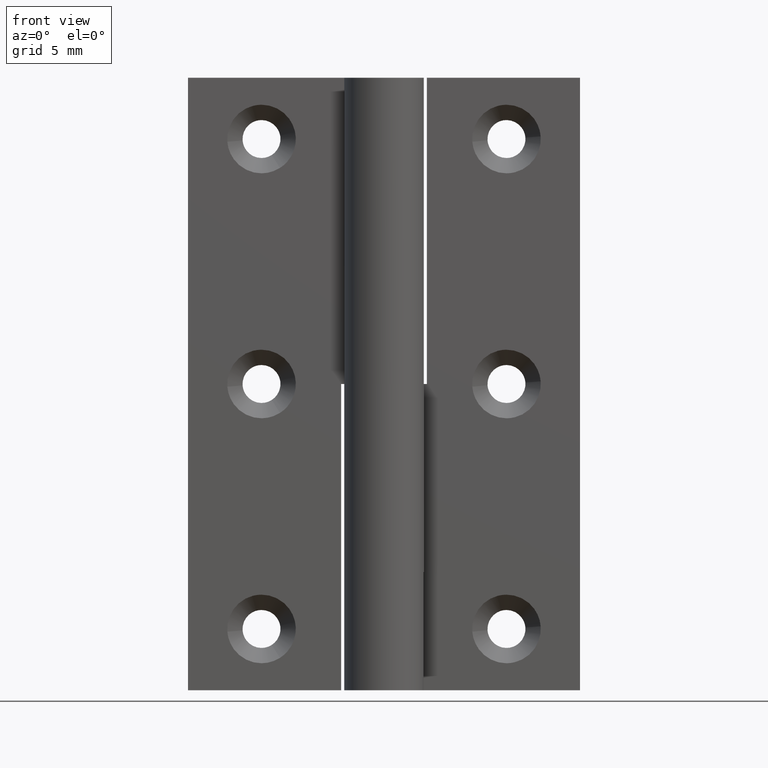
[diagram: clean part render]
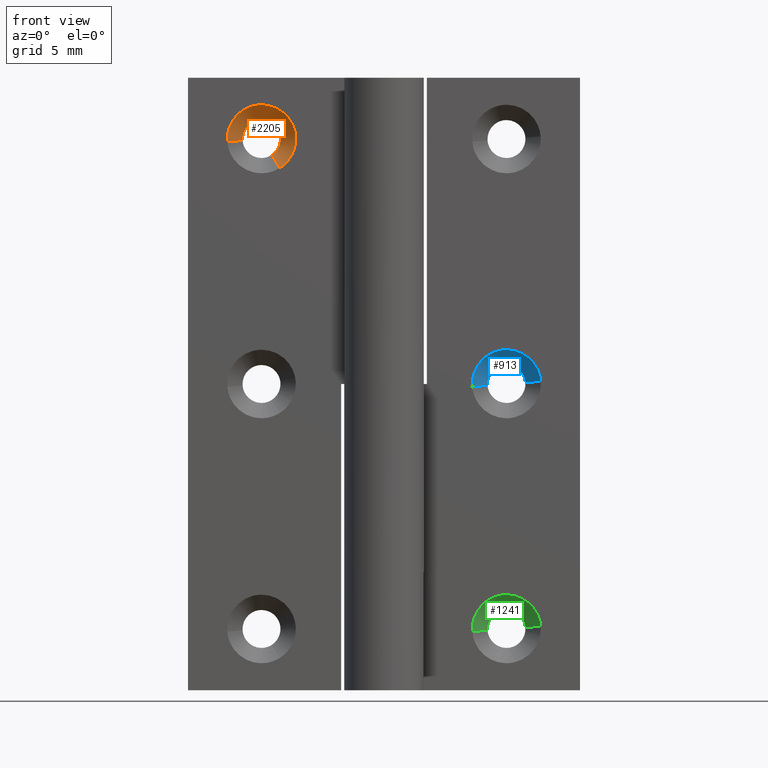
[diagram: same view with three faces highlighted in distinct colors, each labeled with its STEP entity id]
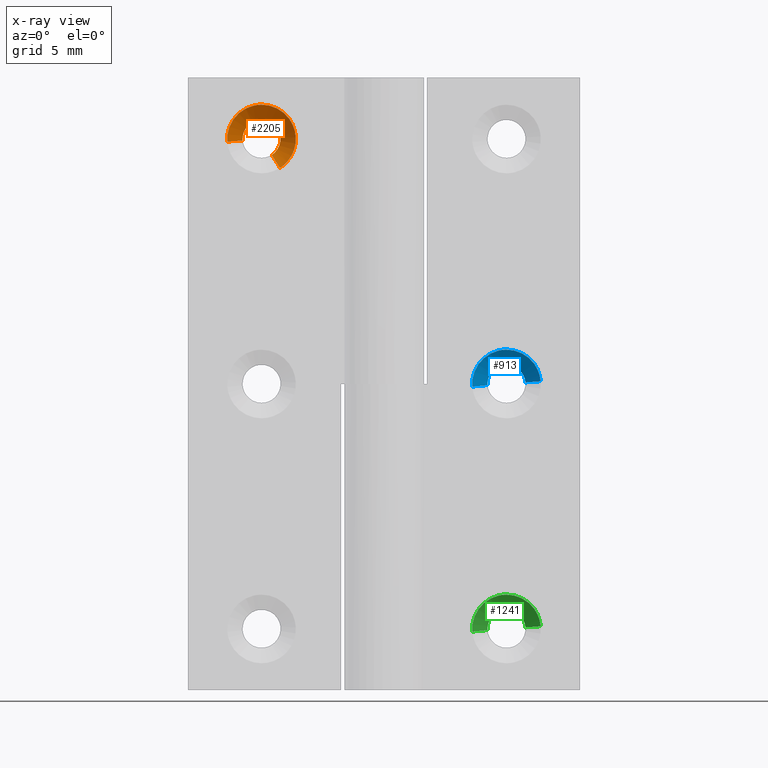
[diagram: x-ray of the same camera — body ghosted, the three highlighted faces saturated]
A machine part, front view with three faces highlighted in distinct colors.
The next image is the same camera in x-ray (body ghosted, the three faces saturated) — at least one of them is partly hidden behind the body in this view.
Their STEP definitions:

[orange] entity #2205 — the highlighted face is a freeform B-spline surface patch.
#2069=CARTESIAN_POINT('',(-9.183139107453576,3.031250000000000,43.719632925787188));
#2070=CARTESIAN_POINT('',(-8.414386393113874,3.031250000000001,44.210089171523684));
#2071=CARTESIAN_POINT('',(-8.485931799392812,3.031250000000000,45.119159751636673));
#2072=CARTESIAN_POINT('',(-8.605091551029480,3.031250000000001,46.633227952243836));
#2073=CARTESIAN_POINT('',(-10.119159751636669,3.031250000000000,46.514068200607177));
#2074=CARTESIAN_POINT('',(-11.633227952243853,3.031250000000001,46.394908448970519));
#2075=CARTESIAN_POINT('',(-11.514068200607189,3.031250000000000,44.880840248363327));
#2076=CARTESIAN_POINT('',(-8.476789745123053,1.717968750000000,42.612484236614485));
#2077=CARTESIAN_POINT('',(-7.043287384278698,1.717968750000000,43.527043851220839));
#2078=CARTESIAN_POINT('',(-7.176698957201103,1.717968750000000,45.222198610947999));
#2079=CARTESIAN_POINT('',(-7.398897568149104,1.717968750000001,48.045499653746894));
#2080=CARTESIAN_POINT('',(-10.222198610948000,1.717968750000000,47.823301042798903));
#2081=CARTESIAN_POINT('',(-13.045499653746896,1.717968750000001,47.601102431850904));
#2082=CARTESIAN_POINT('',(-12.823301042798899,1.717968750000000,44.777801389052001));
#2090=(BOUNDED_SURFACE()B_SPLINE_SURFACE(2,1,((#2069,#2076),(#2070,#2077),(#2071,#2078),(#2072,#2079),(#2073,#2080),(#2074,#2081),(#2075,#2082)),.UNSPECIFIED.,.F.,.F.,.U.)B_SPLINE_SURFACE_WITH_KNOTS((3,2,2,3),(2,2),(0.0,3.190738847655251,7.883001858912975,12.575264870170701),(0.0,1.0),.UNSPECIFIED.)GEOMETRIC_REPRESENTATION_ITEM()RATIONAL_B_SPLINE_SURFACE(((0.872532871172386,0.872532871172386),(0.800832611206852,0.800832611206852),(1.0,1.0),(0.707106781186548,0.707106781186548),(1.0,1.0),(0.707106781186548,0.707106781186548),(1.0,1.0)))REPRESENTATION_ITEM('')SURFACE());
#2091=CARTESIAN_POINT('',(-8.460835234154368,3.0,45.182953063869839));
#2092=VERTEX_POINT('',#2091);
#2093=CARTESIAN_POINT('',(-9.166331270153037,2.999999999999658,43.693287924263188));
#2094=VERTEX_POINT('',#2093);
#2095=CARTESIAN_POINT('',(-8.460835234154368,3.000000000000000,45.182953063869839));
#2096=CARTESIAN_POINT('',(-8.450000000000001,3.0,45.091797385613930));
#2097=CARTESIAN_POINT('',(-8.450000000000001,3.0,45.0));
#2098=CARTESIAN_POINT('',(-8.450000000000001,2.999999999999999,44.150299833185173));
#2099=CARTESIAN_POINT('',(-9.166331270153039,2.999999999999658,43.693287924263188));
#2107=(BOUNDED_CURVE()B_SPLINE_CURVE(2,(#2095,#2096,#2097,#2098,#2099),.UNSPECIFIED.,.F.,.U.)B_SPLINE_CURVE_WITH_KNOTS((3,2,3),(0.229562473482295,0.250000000000000,0.407950112626363),.UNSPECIFIED.)CURVE()GEOMETRIC_REPRESENTATION_ITEM()RATIONAL_B_SPLINE_CURVE((0.956026754122519,0.976055948294576,1.0,0.814949932403669,0.863729296954191))REPRESENTATION_ITEM(''));
#2108=EDGE_CURVE('',#2092,#2094,#2107,.T.);
#2109=ORIENTED_EDGE('',*,*,#2108,.T.);
#2110=CARTESIAN_POINT('',(-8.494017778289670,1.749999999996397,42.639487863214299));
#2111=VERTEX_POINT('',#2110);
#2112=CARTESIAN_POINT('',(-9.166331270153037,2.999999999999658,43.693287924263188));
#2113=CARTESIAN_POINT('',(-8.494017778289670,1.749999999996397,42.639487863214299));
#2114=QUASI_UNIFORM_CURVE('',1,(#2112,#2113),.UNSPECIFIED.,.F.,.U.);
#2115=EDGE_CURVE('',#2094,#2111,#2114,.T.);
#2116=ORIENTED_EDGE('',*,*,#2115,.T.);
#2117=CARTESIAN_POINT('',(-10.0,1.750000000000000,47.799999999999997));
#2118=VERTEX_POINT('',#2117);
#2119=CARTESIAN_POINT('',(-10.0,1.750000000000000,47.799999999999997));
#2120=CARTESIAN_POINT('',(-7.200000000000000,1.750000000000000,47.799999999999997));
#2121=CARTESIAN_POINT('',(-7.200000000000000,1.750000000000000,45.0));
#2122=CARTESIAN_POINT('',(-7.200000000000000,1.750000000000000,43.465057763249852));
#2123=CARTESIAN_POINT('',(-8.494017778289670,1.749999999996397,42.639487863214299));
#2131=(BOUNDED_CURVE()B_SPLINE_CURVE(2,(#2119,#2120,#2121,#2122,#2123),.UNSPECIFIED.,.F.,.U.)B_SPLINE_CURVE_WITH_KNOTS((3,2,3),(0.0,0.250000000000000,0.407950112619935),.UNSPECIFIED.)CURVE()GEOMETRIC_REPRESENTATION_ITEM()RATIONAL_B_SPLINE_CURVE((1.0,0.707106781186547,1.0,0.814949932411200,0.863729296950220))REPRESENTATION_ITEM(''));
#2132=EDGE_CURVE('',#2118,#2111,#2131,.T.);
#2133=ORIENTED_EDGE('',*,*,#2132,.F.);
#2134=CARTESIAN_POINT('',(-12.791368534462871,1.749999999974803,44.780314531769420));
#2135=VERTEX_POINT('',#2134);
#2136=CARTESIAN_POINT('',(-12.791368534462872,1.749999999974804,44.780314531769420));
#2137=CARTESIAN_POINT('',(-12.800000000000004,1.750000000000000,44.889987700187007));
#2138=CARTESIAN_POINT('',(-12.800000000000001,1.750000000000000,45.0));
#2139=CARTESIAN_POINT('',(-12.800000000000001,1.750000000000000,47.799999999999997));
#2140=CARTESIAN_POINT('',(-10.0,1.750000000000000,47.799999999999997));
#2148=(BOUNDED_CURVE()B_SPLINE_CURVE(2,(#2136,#2137,#2138,#2139,#2140),.UNSPECIFIED.,.F.,.U.)B_SPLINE_CURVE_WITH_KNOTS((3,2,3),(0.736331300609352,0.750000000000000,1.0),.UNSPECIFIED.)CURVE()GEOMETRIC_REPRESENTATION_ITEM()RATIONAL_B_SPLINE_CURVE((0.969723356122950,0.983986122553918,1.0,0.707106781186547,1.0))REPRESENTATION_ITEM(''));
#2149=EDGE_CURVE('',#2135,#2118,#2148,.T.);
#2150=ORIENTED_EDGE('',*,*,#2149,.F.);
#2151=CARTESIAN_POINT('',(-11.545221867302221,2.999999999960590,44.878388401321189));
#2152=VERTEX_POINT('',#2151);
#2153=CARTESIAN_POINT('',(-11.545221867302221,2.999999999960590,44.878388401321189));
#2154=CARTESIAN_POINT('',(-12.791368534462871,1.749999999974803,44.780314531769420));
#2155=QUASI_UNIFORM_CURVE('',1,(#2153,#2154),.UNSPECIFIED.,.F.,.U.);
#2156=EDGE_CURVE('',#2152,#2135,#2155,.T.);
#2157=ORIENTED_EDGE('',*,*,#2156,.F.);
#2158=CARTESIAN_POINT('',(-11.547108937546771,3.0,44.905374763604478));
#2159=VERTEX_POINT('',#2158);
#2160=CARTESIAN_POINT('',(-11.545221867302217,2.999999999960591,44.878388401321182));
#2161=CARTESIAN_POINT('',(-11.546283155599843,3.000000000000001,44.891873348150732));
#2162=CARTESIAN_POINT('',(-11.547108937546767,3.0,44.905374763604478));
#2170=(BOUNDED_CURVE()B_SPLINE_CURVE(2,(#2160,#2161,#2162),.UNSPECIFIED.,.F.,.U.)B_SPLINE_CURVE_WITH_KNOTS((3,3),(0.736331300566745,0.739332962215983),.UNSPECIFIED.)CURVE()GEOMETRIC_REPRESENTATION_ITEM()RATIONAL_B_SPLINE_CURVE((0.969723356034032,0.972855475467486,0.976072041617509))REPRESENTATION_ITEM(''));
#2171=EDGE_CURVE('',#2152,#2159,#2170,.T.);
#2172=ORIENTED_EDGE('',*,*,#2171,.T.);
#2173=CARTESIAN_POINT('',(-10.0,3.0,46.549999999999997));
#2174=VERTEX_POINT('',#2173);
#2175=CARTESIAN_POINT('',(-11.547108937546774,3.000000000000000,44.905374763604478));
#2176=CARTESIAN_POINT('',(-11.550000000000004,2.999999999999999,44.952643216770369));
#2177=CARTESIAN_POINT('',(-11.550000000000001,3.0,45.0));
#2178=CARTESIAN_POINT('',(-11.549999999999999,3.000000000000000,46.549999999999990));
#2179=CARTESIAN_POINT('',(-10.0,3.0,46.549999999999997));
#2187=(BOUNDED_CURVE()B_SPLINE_CURVE(2,(#2175,#2176,#2177,#2178,#2179),.UNSPECIFIED.,.F.,.U.)B_SPLINE_CURVE_WITH_KNOTS((3,2,3),(0.739332962215983,0.750000000000000,1.0),.UNSPECIFIED.)CURVE()GEOMETRIC_REPRESENTATION_ITEM()RATIONAL_B_SPLINE_CURVE((0.976072041617510,0.987502787872938,1.0,0.707106781186547,1.0))REPRESENTATION_ITEM(''));
#2188=EDGE_CURVE('',#2159,#2174,#2187,.T.);
#2189=ORIENTED_EDGE('',*,*,#2188,.T.);
#2190=CARTESIAN_POINT('',(-10.0,3.0,46.549999999999997));
#2191=CARTESIAN_POINT('',(-8.623329485048952,2.999999999999999,46.549999999999997));
#2192=CARTESIAN_POINT('',(-8.460835234154368,3.000000000000000,45.182953063869832));
#2200=(BOUNDED_CURVE()B_SPLINE_CURVE(2,(#2190,#2191,#2192),.UNSPECIFIED.,.F.,.U.)B_SPLINE_CURVE_WITH_KNOTS((3,3),(0.0,0.229562473482295),.UNSPECIFIED.)CURVE()GEOMETRIC_REPRESENTATION_ITEM()RATIONAL_B_SPLINE_CURVE((1.0,0.731050832891971,0.956026754122519))REPRESENTATION_ITEM(''));
#2201=EDGE_CURVE('',#2174,#2092,#2200,.T.);
#2202=ORIENTED_EDGE('',*,*,#2201,.T.);
#2203=EDGE_LOOP('',(#2109,#2116,#2133,#2150,#2157,#2172,#2189,#2202));
#2204=FACE_OUTER_BOUND('',#2203,.T.);
#2205=ADVANCED_FACE('',(#2204),#2090,.F.);

[blue] entity #913 — the highlighted face is a freeform B-spline surface patch.
#718=CARTESIAN_POINT('',(8.452891050591822,2.999999999989410,24.905374957537241));
#719=VERTEX_POINT('',#718);
#763=CARTESIAN_POINT('',(11.545221867326820,2.999999999898537,25.121611599157131));
#764=VERTEX_POINT('',#763);
#780=CARTESIAN_POINT('',(10.0,3.0,26.550000000000001));
#781=VERTEX_POINT('',#780);
#782=CARTESIAN_POINT('',(10.0,3.0,26.550000000000001));
#783=CARTESIAN_POINT('',(11.432805260635956,3.000000000000001,26.550000000000001));
#784=CARTESIAN_POINT('',(11.545221867326823,2.999999999898537,25.121611599157131));
#792=(BOUNDED_CURVE()B_SPLINE_CURVE(2,(#782,#783,#784),.UNSPECIFIED.,.F.,.U.)B_SPLINE_CURVE_WITH_KNOTS((3,3),(0.0,0.236331300461697),.UNSPECIFIED.)CURVE()GEOMETRIC_REPRESENTATION_ITEM()RATIONAL_B_SPLINE_CURVE((1.0,0.723120658805618,0.969723355814805))REPRESENTATION_ITEM(''));
#793=EDGE_CURVE('',#781,#764,#792,.T.);
#795=CARTESIAN_POINT('',(8.452891050591822,2.999999999989410,24.905374957537237));
#796=CARTESIAN_POINT('',(8.450000000000001,3.0,24.952643314067043));
#797=CARTESIAN_POINT('',(8.450000000000001,3.0,25.0));
#798=CARTESIAN_POINT('',(8.450000000000001,3.000000000000000,26.550000000000008));
#799=CARTESIAN_POINT('',(10.0,3.0,26.550000000000001));
#807=(BOUNDED_CURVE()B_SPLINE_CURVE(2,(#795,#796,#797,#798,#799),.UNSPECIFIED.,.F.,.U.)B_SPLINE_CURVE_WITH_KNOTS((3,2,3),(0.739332983858013,0.750000000000000,1.0),.UNSPECIFIED.)CURVE()GEOMETRIC_REPRESENTATION_ITEM()RATIONAL_B_SPLINE_CURVE((0.976072088000504,0.987502813228153,1.0,0.707106781186547,1.0))REPRESENTATION_ITEM(''));
#808=EDGE_CURVE('',#719,#781,#807,.T.);
#847=CARTESIAN_POINT('',(11.514068200607189,3.031250000000000,25.119159751636669));
#848=CARTESIAN_POINT('',(11.394908448970520,3.031250000000001,26.633227952243857));
#849=CARTESIAN_POINT('',(9.880840248363334,3.031250000000000,26.514068200607191));
#850=CARTESIAN_POINT('',(8.366772047756149,3.031250000000001,26.394908448970515));
#851=CARTESIAN_POINT('',(8.485931799392812,3.031250000000000,24.880840248363331));
#852=CARTESIAN_POINT('',(12.823301042798899,1.717968750000000,25.222198610947999));
#853=CARTESIAN_POINT('',(12.601102431850896,1.717968750000001,28.045499653746891));
#854=CARTESIAN_POINT('',(9.777801389052000,1.717968750000000,27.823301042798899));
#855=CARTESIAN_POINT('',(6.954500346253103,1.717968750000001,27.601102431850897));
#856=CARTESIAN_POINT('',(7.176698957201103,1.717968750000000,24.777801389052001));
#864=(BOUNDED_SURFACE()B_SPLINE_SURFACE(2,1,((#847,#852),(#848,#853),(#849,#854),(#850,#855),(#851,#856)),.UNSPECIFIED.,.F.,.F.,.U.)B_SPLINE_SURFACE_WITH_KNOTS((3,2,3),(2,2),(0.0,4.692263011257722,9.384526022515443),(0.0,1.0),.UNSPECIFIED.)GEOMETRIC_REPRESENTATION_ITEM()RATIONAL_B_SPLINE_SURFACE(((1.0,1.0),(0.707106781186548,0.707106781186548),(1.0,1.0),(0.707106781186548,0.707106781186548),(1.0,1.0)))REPRESENTATION_ITEM('')SURFACE());
#865=ORIENTED_EDGE('',*,*,#793,.T.);
#866=CARTESIAN_POINT('',(12.791368534462871,1.749999999974803,25.219685468230580));
#867=VERTEX_POINT('',#866);
#868=CARTESIAN_POINT('',(11.545221867326820,2.999999999898537,25.121611599157131));
#869=CARTESIAN_POINT('',(12.791368534462871,1.749999999974803,25.219685468230580));
#870=QUASI_UNIFORM_CURVE('',1,(#868,#869),.UNSPECIFIED.,.F.,.U.);
#871=EDGE_CURVE('',#764,#867,#870,.T.);
#872=ORIENTED_EDGE('',*,*,#871,.T.);
#873=CARTESIAN_POINT('',(10.0,1.750000000000000,27.800000000000001));
#874=VERTEX_POINT('',#873);
#875=CARTESIAN_POINT('',(10.0,1.750000000000000,27.800000000000001));
#876=CARTESIAN_POINT('',(12.588293376288350,1.750000000000000,27.800000000000004));
#877=CARTESIAN_POINT('',(12.791368534462872,1.749999999974804,25.219685468230576));
#885=(BOUNDED_CURVE()B_SPLINE_CURVE(2,(#875,#876,#877),.UNSPECIFIED.,.F.,.U.)B_SPLINE_CURVE_WITH_KNOTS((3,3),(0.0,0.236331300609352),.UNSPECIFIED.)CURVE()GEOMETRIC_REPRESENTATION_ITEM()RATIONAL_B_SPLINE_CURVE((1.0,0.723120658632629,0.969723356122950))REPRESENTATION_ITEM(''));
#886=EDGE_CURVE('',#874,#867,#885,.T.);
#887=ORIENTED_EDGE('',*,*,#886,.F.);
#888=CARTESIAN_POINT('',(7.208631465537128,1.749999999974804,24.780314531769420));
#889=VERTEX_POINT('',#888);
#890=CARTESIAN_POINT('',(7.208631465537128,1.749999999974804,24.780314531769417));
#891=CARTESIAN_POINT('',(7.200000000000000,1.750000000000000,24.889987700186996));
#892=CARTESIAN_POINT('',(7.200000000000000,1.750000000000000,25.0));
#893=CARTESIAN_POINT('',(7.200000000000000,1.750000000000000,27.800000000000004));
#894=CARTESIAN_POINT('',(10.0,1.750000000000000,27.800000000000001));
#902=(BOUNDED_CURVE()B_SPLINE_CURVE(2,(#890,#891,#892,#893,#894),.UNSPECIFIED.,.F.,.U.)B_SPLINE_CURVE_WITH_KNOTS((3,2,3),(0.736331300609351,0.750000000000000,1.0),.UNSPECIFIED.)CURVE()GEOMETRIC_REPRESENTATION_ITEM()RATIONAL_B_SPLINE_CURVE((0.969723356122949,0.983986122553918,1.0,0.707106781186547,1.0))REPRESENTATION_ITEM(''));
#903=EDGE_CURVE('',#889,#874,#902,.T.);
#904=ORIENTED_EDGE('',*,*,#903,.F.);
#905=CARTESIAN_POINT('',(8.452891050591822,2.999999999989410,24.905374957537241));
#906=CARTESIAN_POINT('',(7.208631465537128,1.749999999974804,24.780314531769420));
#907=QUASI_UNIFORM_CURVE('',1,(#905,#906),.UNSPECIFIED.,.F.,.U.);
#908=EDGE_CURVE('',#719,#889,#907,.T.);
#909=ORIENTED_EDGE('',*,*,#908,.F.);
#910=ORIENTED_EDGE('',*,*,#808,.T.);
#911=EDGE_LOOP('',(#865,#872,#887,#904,#909,#910));
#912=FACE_OUTER_BOUND('',#911,.T.);
#913=ADVANCED_FACE('',(#912),#864,.F.);

[green] entity #1241 — the highlighted face is a freeform B-spline surface patch.
#1046=CARTESIAN_POINT('',(8.452891050591820,2.999999999989410,4.905374957537241));
#1047=VERTEX_POINT('',#1046);
#1091=CARTESIAN_POINT('',(11.545221867326820,2.999999999898537,5.121611599157134));
#1092=VERTEX_POINT('',#1091);
#1108=CARTESIAN_POINT('',(10.0,3.0,6.550000000000001));
#1109=VERTEX_POINT('',#1108);
#1110=CARTESIAN_POINT('',(10.0,3.0,6.550000000000001));
#1111=CARTESIAN_POINT('',(11.432805260635956,3.0,6.550000000000001));
#1112=CARTESIAN_POINT('',(11.545221867326823,2.999999999898537,5.121611599157134));
#1120=(BOUNDED_CURVE()B_SPLINE_CURVE(2,(#1110,#1111,#1112),.UNSPECIFIED.,.F.,.U.)B_SPLINE_CURVE_WITH_KNOTS((3,3),(0.0,0.236331300461697),.UNSPECIFIED.)CURVE()GEOMETRIC_REPRESENTATION_ITEM()RATIONAL_B_SPLINE_CURVE((1.0,0.723120658805618,0.969723355814805))REPRESENTATION_ITEM(''));
#1121=EDGE_CURVE('',#1109,#1092,#1120,.T.);
#1123=CARTESIAN_POINT('',(8.452891050591820,2.999999999989410,4.905374957537241));
#1124=CARTESIAN_POINT('',(8.450000000000001,3.000000000000001,4.952643314067042));
#1125=CARTESIAN_POINT('',(8.450000000000001,3.0,5.0));
#1126=CARTESIAN_POINT('',(8.450000000000001,3.000000000000000,6.550000000000000));
#1127=CARTESIAN_POINT('',(10.0,3.0,6.550000000000001));
#1135=(BOUNDED_CURVE()B_SPLINE_CURVE(2,(#1123,#1124,#1125,#1126,#1127),.UNSPECIFIED.,.F.,.U.)B_SPLINE_CURVE_WITH_KNOTS((3,2,3),(0.739332983858013,0.750000000000000,1.0),.UNSPECIFIED.)CURVE()GEOMETRIC_REPRESENTATION_ITEM()RATIONAL_B_SPLINE_CURVE((0.976072088000504,0.987502813228153,1.0,0.707106781186547,1.0))REPRESENTATION_ITEM(''));
#1136=EDGE_CURVE('',#1047,#1109,#1135,.T.);
#1175=CARTESIAN_POINT('',(11.514068200607189,3.031250000000000,5.119159751636666));
#1176=CARTESIAN_POINT('',(11.394908448970520,3.031250000000001,6.633227952243852));
#1177=CARTESIAN_POINT('',(9.880840248363334,3.031250000000000,6.514068200607187));
#1178=CARTESIAN_POINT('',(8.366772047756149,3.031250000000001,6.394908448970521));
#1179=CARTESIAN_POINT('',(8.485931799392812,3.031250000000000,4.880840248363334));
#1180=CARTESIAN_POINT('',(12.823301042798899,1.717968750000000,5.222198610948000));
#1181=CARTESIAN_POINT('',(12.601102431850896,1.717968750000001,8.045499653746898));
#1182=CARTESIAN_POINT('',(9.777801389052000,1.717968750000000,7.823301042798897));
#1183=CARTESIAN_POINT('',(6.954500346253103,1.717968750000001,7.601102431850896));
#1184=CARTESIAN_POINT('',(7.176698957201103,1.717968750000000,4.777801389052000));
#1192=(BOUNDED_SURFACE()B_SPLINE_SURFACE(2,1,((#1175,#1180),(#1176,#1181),(#1177,#1182),(#1178,#1183),(#1179,#1184)),.UNSPECIFIED.,.F.,.F.,.U.)B_SPLINE_SURFACE_WITH_KNOTS((3,2,3),(2,2),(0.0,4.692263011257718,9.384526022515436),(0.0,1.0),.UNSPECIFIED.)GEOMETRIC_REPRESENTATION_ITEM()RATIONAL_B_SPLINE_SURFACE(((1.0,1.0),(0.707106781186548,0.707106781186548),(1.0,1.0),(0.707106781186548,0.707106781186548),(1.0,1.0)))REPRESENTATION_ITEM('')SURFACE());
#1193=ORIENTED_EDGE('',*,*,#1121,.T.);
#1194=CARTESIAN_POINT('',(12.791368534462871,1.749999999974803,5.219685468230582));
#1195=VERTEX_POINT('',#1194);
#1196=CARTESIAN_POINT('',(11.545221867326820,2.999999999898537,5.121611599157134));
#1197=CARTESIAN_POINT('',(12.791368534462871,1.749999999974803,5.219685468230582));
#1198=QUASI_UNIFORM_CURVE('',1,(#1196,#1197),.UNSPECIFIED.,.F.,.U.);
#1199=EDGE_CURVE('',#1092,#1195,#1198,.T.);
#1200=ORIENTED_EDGE('',*,*,#1199,.T.);
#1201=CARTESIAN_POINT('',(10.0,1.750000000000000,7.800000000000000));
#1202=VERTEX_POINT('',#1201);
#1203=CARTESIAN_POINT('',(10.0,1.750000000000000,7.800000000000000));
#1204=CARTESIAN_POINT('',(12.588293376288346,1.749999999999999,7.800000000000000));
#1205=CARTESIAN_POINT('',(12.791368534462872,1.749999999974804,5.219685468230583));
#1213=(BOUNDED_CURVE()B_SPLINE_CURVE(2,(#1203,#1204,#1205),.UNSPECIFIED.,.F.,.U.)B_SPLINE_CURVE_WITH_KNOTS((3,3),(0.0,0.236331300609352),.UNSPECIFIED.)CURVE()GEOMETRIC_REPRESENTATION_ITEM()RATIONAL_B_SPLINE_CURVE((1.0,0.723120658632629,0.969723356122949))REPRESENTATION_ITEM(''));
#1214=EDGE_CURVE('',#1202,#1195,#1213,.T.);
#1215=ORIENTED_EDGE('',*,*,#1214,.F.);
#1216=CARTESIAN_POINT('',(7.208631465537128,1.749999999974804,4.780314531769417));
#1217=VERTEX_POINT('',#1216);
#1218=CARTESIAN_POINT('',(7.208631465537129,1.749999999974804,4.780314531769417));
#1219=CARTESIAN_POINT('',(7.200000000000000,1.750000000000000,4.889987700187001));
#1220=CARTESIAN_POINT('',(7.200000000000000,1.750000000000000,5.0));
#1221=CARTESIAN_POINT('',(7.200000000000000,1.750000000000000,7.799999999999999));
#1222=CARTESIAN_POINT('',(10.0,1.750000000000000,7.800000000000000));
#1230=(BOUNDED_CURVE()B_SPLINE_CURVE(2,(#1218,#1219,#1220,#1221,#1222),.UNSPECIFIED.,.F.,.U.)B_SPLINE_CURVE_WITH_KNOTS((3,2,3),(0.736331300609352,0.750000000000000,1.0),.UNSPECIFIED.)CURVE()GEOMETRIC_REPRESENTATION_ITEM()RATIONAL_B_SPLINE_CURVE((0.969723356122950,0.983986122553918,1.0,0.707106781186547,1.0))REPRESENTATION_ITEM(''));
#1231=EDGE_CURVE('',#1217,#1202,#1230,.T.);
#1232=ORIENTED_EDGE('',*,*,#1231,.F.);
#1233=CARTESIAN_POINT('',(8.452891050591820,2.999999999989410,4.905374957537241));
#1234=CARTESIAN_POINT('',(7.208631465537128,1.749999999974804,4.780314531769417));
#1235=QUASI_UNIFORM_CURVE('',1,(#1233,#1234),.UNSPECIFIED.,.F.,.U.);
#1236=EDGE_CURVE('',#1047,#1217,#1235,.T.);
#1237=ORIENTED_EDGE('',*,*,#1236,.F.);
#1238=ORIENTED_EDGE('',*,*,#1136,.T.);
#1239=EDGE_LOOP('',(#1193,#1200,#1215,#1232,#1237,#1238));
#1240=FACE_OUTER_BOUND('',#1239,.T.);
#1241=ADVANCED_FACE('',(#1240),#1192,.F.);